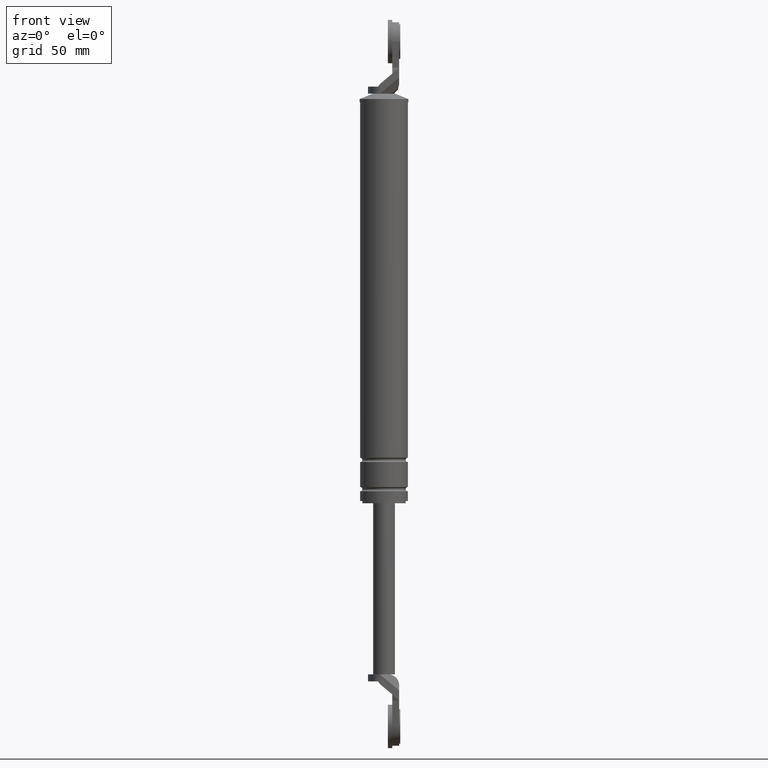
[diagram: clean part render]
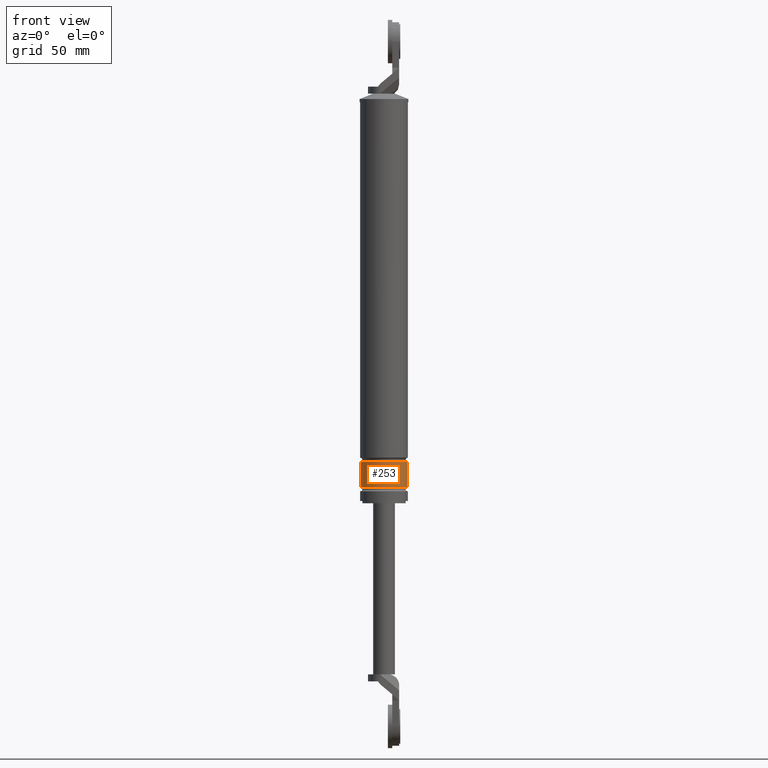
[diagram: same view with one face highlighted and labeled with its STEP entity id]
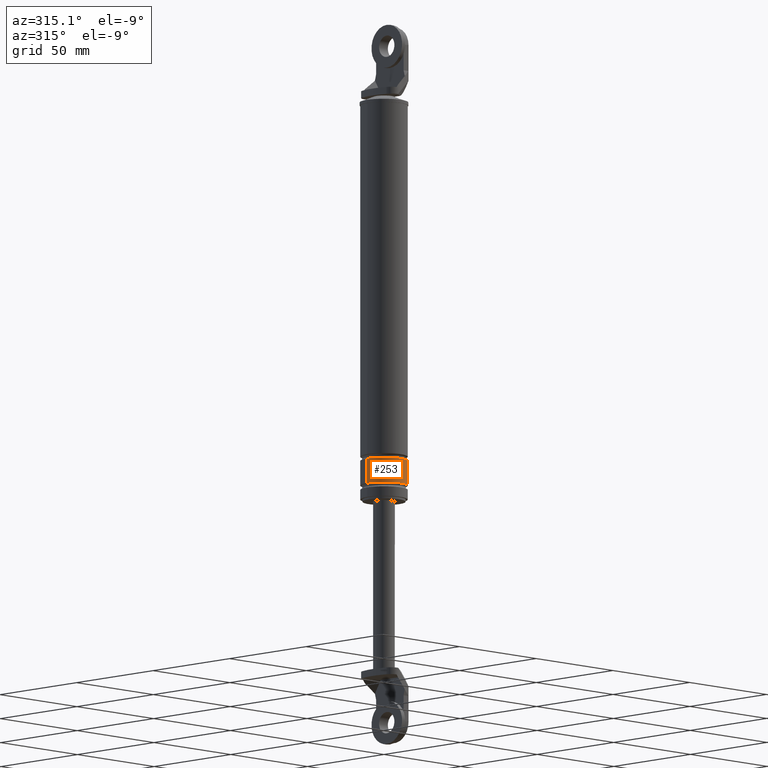
[diagram: same view with one face highlighted and labeled with its STEP entity id]
A machine part, front view. The second image highlights one B-rep face of the part: STEP entity #253.
A second angle (auxiliary view) of the same face is appended — the face is thin or edge-on in the first view.
In plain terms, the highlighted cylindrical surface (edge-blend (fillet) strip) has radius 11 mm, axis along (0, 0, 1).
Its self-contained STEP definition (entity closure, byte-faithful):
#253=ADVANCED_FACE('',(#785),#784,.T.);
#784=CYLINDRICAL_SURFACE('',#1536,1.10000000000E+001);
#785=FACE_OUTER_BOUND('',#1537,.T.);
#1533=CARTESIAN_POINT('',(0.00000000000E+000,3.58204186421E-014,0.00000000000E+000));
#1534=DIRECTION('',(-0.00000000000E+000,-0.00000000000E+000,1.00000000000E+000));
#1535=DIRECTION('',(-1.00000000000E+000,1.22464679915E-016,0.00000000000E+000));
#1536=AXIS2_PLACEMENT_3D('',#1533,#1534,#1535);
#1537=EDGE_LOOP('',(#1990,#1991,#1992,#1993));
#1990=ORIENTED_EDGE('',*,*,#2278,.T.);
#1991=ORIENTED_EDGE('',*,*,#2279,.F.);
#1992=ORIENTED_EDGE('',*,*,#2274,.F.);
#1993=ORIENTED_EDGE('',*,*,#2280,.T.);
#2274=EDGE_CURVE('',#3111,#3110,#3130,.T.);
#2278=EDGE_CURVE('',#3136,#3143,#3156,.T.);
#2279=EDGE_CURVE('',#3110,#3143,#3162,.T.);
#2280=EDGE_CURVE('',#3111,#3136,#3168,.T.);
#3110=VERTEX_POINT('',#4135);
#3111=VERTEX_POINT('',#4136);
#3130=CIRCLE('',#4154,1.10000000000E+001);
#3136=VERTEX_POINT('',#4155);
#3143=VERTEX_POINT('',#4161);
#3156=CIRCLE('',#4174,1.10000000000E+001);
#3162=(BOUNDED_CURVE() B_SPLINE_CURVE(1,(#4175,#4176),.UNSPECIFIED.,.F.,.F.) B_SPLINE_CURVE_WITH_KNOTS((2,2),(8.33333343261E-002,9.16666667006E-001),.UNSPECIFIED.) CURVE() GEOMETRIC_REPRESENTATION_ITEM() RATIONAL_B_SPLINE_CURVE((1.00000000000E+000,1.00000000000E+000)) REPRESENTATION_ITEM('') );
#3168=(BOUNDED_CURVE() B_SPLINE_CURVE(1,(#4177,#4178),.UNSPECIFIED.,.F.,.F.) B_SPLINE_CURVE_WITH_KNOTS((2,2),(8.33333333333E-002,9.16666666667E-001),.UNSPECIFIED.) CURVE() GEOMETRIC_REPRESENTATION_ITEM() RATIONAL_B_SPLINE_CURVE((7.50000000000E-001,7.50000000000E-001)) REPRESENTATION_ITEM('') );
#4135=CARTESIAN_POINT('',(-1.10000000000E+001,3.58204186421E-014,-9.25000150000E+001));
#4136=CARTESIAN_POINT('',(1.10000000000E+001,3.61192557345E-014,-9.25000150000E+001));
#4151=CARTESIAN_POINT('',(0.00000000000E+000,3.58204186421E-014,-9.25000150000E+001));
#4152=DIRECTION('',(-0.00000000000E+000,0.00000000000E+000,-1.00000000000E+000));
#4153=DIRECTION('',(-1.00000000000E+000,-1.22460635382E-016,0.00000000000E+000));
#4154=AXIS2_PLACEMENT_3D('',#4151,#4152,#4153);
#4155=CARTESIAN_POINT('',(1.10000000000E+001,3.61192557345E-014,-8.10000150000E+001));
#4161=CARTESIAN_POINT('',(-1.10000000000E+001,3.58204186421E-014,-8.10000150000E+001));
#4171=CARTESIAN_POINT('',(0.00000000000E+000,3.58204186421E-014,-8.10000150000E+001));
#4172=DIRECTION('',(-0.00000000000E+000,0.00000000000E+000,-1.00000000000E+000));
#4173=DIRECTION('',(-1.00000000000E+000,-1.22460635382E-016,0.00000000000E+000));
#4174=AXIS2_PLACEMENT_3D('',#4171,#4172,#4173);
#4175=CARTESIAN_POINT('',(-1.10000000000E+001,3.71675301212E-014,-9.25000149863E+001));
#4176=CARTESIAN_POINT('',(-1.10000000000E+001,3.71675301212E-014,-8.10000149953E+001));
#4177=CARTESIAN_POINT('',(1.10000000000E+001,3.49350178415E-014,-9.25000150000E+001));
#4178=CARTESIAN_POINT('',(1.10000000000E+001,3.49350178415E-014,-8.10000150000E+001));